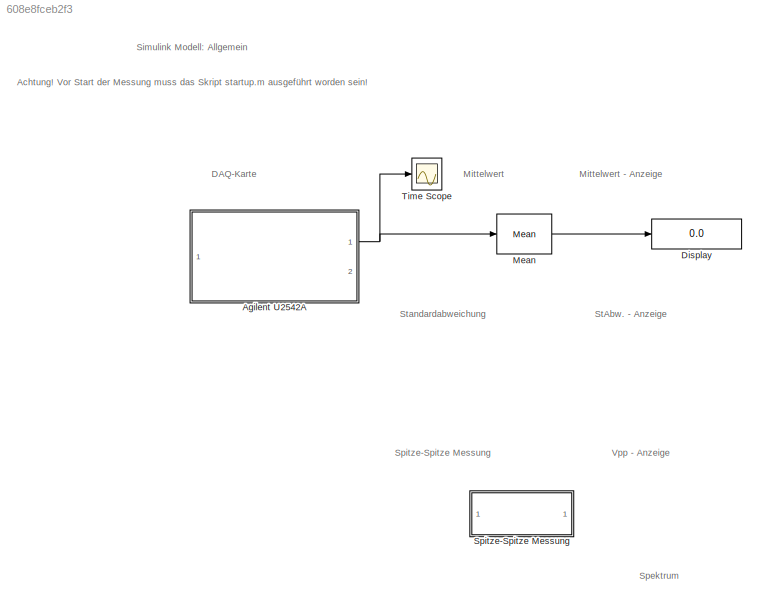
MODEL slx_608e8fceb2f3
KIND model
CONFIG AbsTol = auto
CONFIG EnableMultiTasking = on
CONFIG FixedStep = auto
CONFIG MaxStep = auto
CONFIG MinStep = auto
CONFIG RelTol = 1e-3
CONFIG SampleTimeConstraint = Unconstrained
CONFIG SolverName = ode45
CONFIG StartTime = 0.0
CONFIG StopTime = inf
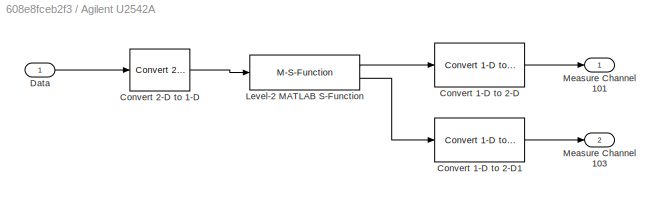
BLOCK [SubSystem] Agilent U2542A
  Ports = [1, 2]
  RequestExecContextInheritance = off
BLOCK [Reference] Agilent U2542A/Convert 1-D to 2-D  REF=dspsigattribs/Convert 1-D to 2-D
  Ports = [1, 1]
  SourceBlock = dspsigattribs/Convert 1-D to 2-D
  SourceProductBaseCode = DS
  SourceType = Convert 1-D to 2-D
BLOCK [Reference] Agilent U2542A/Convert 1-D to 2-D1  REF=dspsigattribs/Convert 1-D to 2-D
  Ports = [1, 1]
  SourceBlock = dspsigattribs/Convert 1-D to 2-D
  SourceProductBaseCode = DS
  SourceType = Convert 1-D to 2-D
BLOCK [Reference] Agilent U2542A/Convert 2-D to 1-D  REF=dspsigattribs/Convert 2-D to 1-D
  Ports = [1, 1]
  SourceBlock = dspsigattribs/Convert 2-D to 1-D
  SourceProductBaseCode = DS
  SourceType = Convert 2-D to 1-D
BLOCK [Inport] Agilent U2542A/Data
BLOCK [M-S-Function] Agilent U2542A/Level-2 MATLAB S-Function
  FunctionName = agilentdriver
  Parameters = samplingtime,datapoints,input,output,visaaddr,visa_obj
  Ports = [1, 2]
BLOCK [Outport] Agilent U2542A/Measure Channel 101
BLOCK [Outport] Agilent U2542A/Measure Channel 103 
  Port = 2
BLOCK [Display] Display
  Decimation = 1
  Ports = [1]
BLOCK [Reference] Mean  REF=dspstat3/Mean
  Ports = [1, 1]
  SourceBlock = dspstat3/Mean
  SourceProductBaseCode = DS
  SourceType = Mean
  UserDataPersistent = on
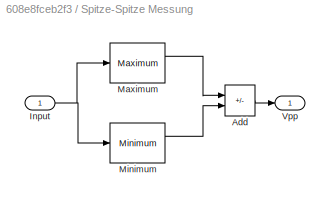
BLOCK [SubSystem] Spitze-Spitze Messung
  Ports = [1, 1]
  RequestExecContextInheritance = off
BLOCK [Sum] Spitze-Spitze Messung/Add
  IconShape = rectangular
  Inputs = +-
  Ports = [2, 1]
BLOCK [Inport] Spitze-Spitze Messung/Input
BLOCK [Reference] Spitze-Spitze Messung/Maximum  REF=dspstat3/Maximum
  Ports = [1, 2]
  SourceBlock = dspstat3/Maximum
  SourceProductBaseCode = DS
  SourceType = Maximum
  UserDataPersistent = on
BLOCK [Reference] Spitze-Spitze Messung/Minimum  REF=dspstat3/Minimum
  Ports = [1, 2]
  SourceBlock = dspstat3/Minimum
  SourceProductBaseCode = DS
  SourceType = Minimum
  UserDataPersistent = on
BLOCK [Outport] Spitze-Spitze Messung/Vpp
BLOCK [Scope] Time Scope
  DefaultConfigurationName = spbscopes.TimeScopeBlockCfg
  Floating = off
  NumInputPorts = 1
  Ports = [1]
  ScopeSpecificationString = spbscopes.TimeScopeBlockCfg('CurrentConfiguration', extmgr.ConfigurationSet(extmgr.Configuration('Core','General UI',true),extmgr.Configuration('Core','Source UI',true),extmgr.Configuration('Sources','WiredSimulink',true,'DataLoggingVariableName','ScopeData1'),extmgr.Configuration('Visuals','Time Domain',true,'DisplayPropertyDefaults',struct('MinYLimReal','-3.57309','MaxYLimReal','2.59861','YLabel...<+1392ch>
  UserDataPersistent = on
ANNOTATION (root): Achtung! Vor Start der Messung muss das Skript startup.m ausgeführt worden sein!
ANNOTATION (root): DAQ-Karte
ANNOTATION (root): Mittelwert - Anzeige
ANNOTATION (root): Mittelwert
ANNOTATION (root): Spektrum
ANNOTATION (root): Spitze-Spitze Messung
ANNOTATION (root): StAbw. - Anzeige
ANNOTATION (root): Standardabweichung
ANNOTATION (root): Vpp - Anzeige
ANNOTATION (root): Simulink Modell: Allgemein
LINE Agilent U2542A/Convert 1-D to 2-D1:1 -> Agilent U2542A/Measure Channel 103 :1
LINE Agilent U2542A/Convert 1-D to 2-D:1 -> Agilent U2542A/Measure Channel 101:1
LINE Agilent U2542A/Convert 2-D to 1-D:1 -> Agilent U2542A/Level-2 MATLAB S-Function:1
LINE Agilent U2542A/Data:1 -> Agilent U2542A/Convert 2-D to 1-D:1
LINE Agilent U2542A/Level-2 MATLAB S-Function:1 -> Agilent U2542A/Convert 1-D to 2-D:1
LINE Agilent U2542A/Level-2 MATLAB S-Function:2 -> Agilent U2542A/Convert 1-D to 2-D1:1
NET Agilent U2542A:1 -> Mean:1, Time Scope:1
LINE Mean:1 -> Display:1
LINE Spitze-Spitze Messung/Add:1 -> Spitze-Spitze Messung/Vpp:1
NET Spitze-Spitze Messung/Input:1 -> Spitze-Spitze Messung/Maximum:1, Spitze-Spitze Messung/Minimum:1
LINE Spitze-Spitze Messung/Maximum:1 -> Spitze-Spitze Messung/Add:1
LINE Spitze-Spitze Messung/Minimum:1 -> Spitze-Spitze Messung/Add:2
note: NET lines group one-source signal fan-out (src -> all destinations, sorted); 1:1 wires keep LINE
